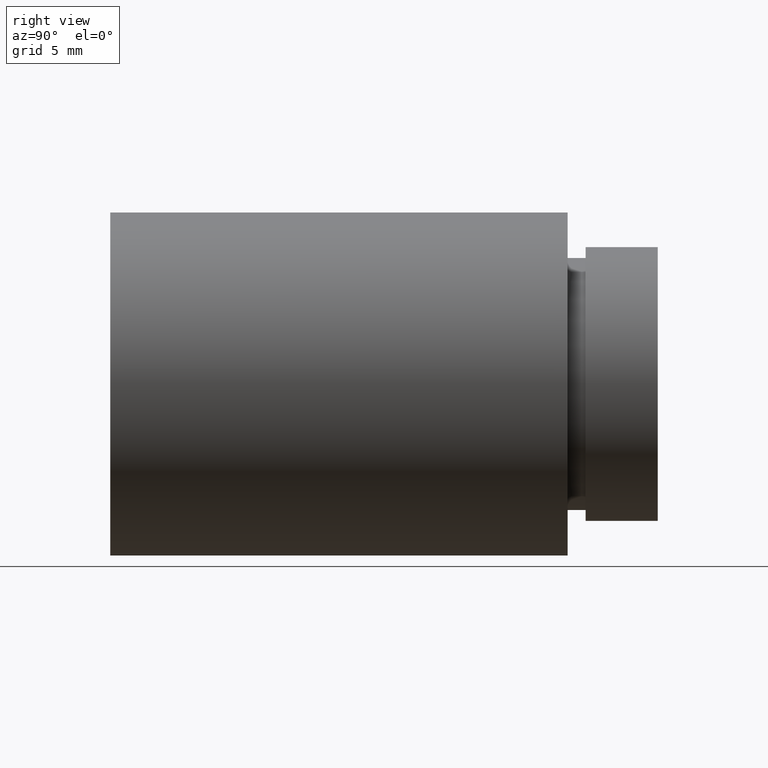
[diagram: clean part render]
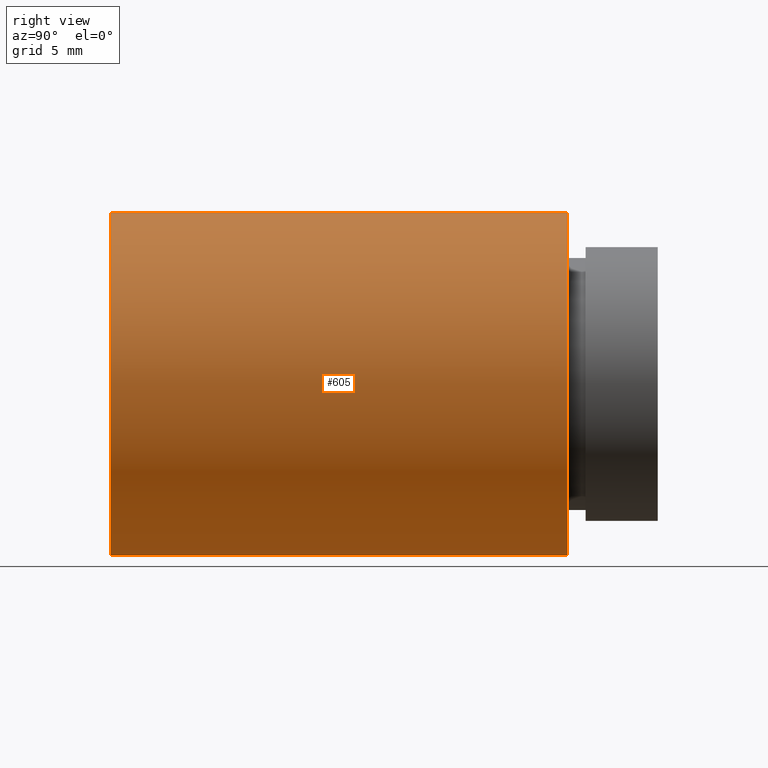
[diagram: same view with one face highlighted and labeled with its STEP entity id]
A machine part, right view. The second image highlights one B-rep face of the part: STEP entity #605.
In plain terms, the highlighted cylindrical surface (partial cylindrical patch) has radius 9.525 mm, axis along (-0, 1, -0).
Its self-contained STEP definition (entity closure, byte-faithful):
#26 = CARTESIAN_POINT ( 'NONE',  ( 1.166476076187856400E-015, 25.39999999999997700, -9.525000000000019900 ) ) ;
#38 = DIRECTION ( 'NONE',  ( 0.0000000000000000000, 0.0000000000000000000, 1.000000000000000000 ) ) ;
#48 = DIRECTION ( 'NONE',  ( 0.0000000000000000000, 0.0000000000000000000, 1.000000000000000000 ) ) ;
#77 = CARTESIAN_POINT ( 'NONE',  ( 1.166476076187856400E-015, 161.3761669434274500, -9.525000000000019900 ) ) ;
#89 = DIRECTION ( 'NONE',  ( -0.0000000000000000000, 1.000000000000000000, -0.0000000000000000000 ) ) ;
#96 = ORIENTED_EDGE ( 'NONE', *, *, #301, .F. ) ;
#112 = LINE ( 'NONE', #77, #191 ) ;
#122 = VERTEX_POINT ( 'NONE', #26 ) ;
#124 = CIRCLE ( 'NONE', #217, 9.525000000000019900 ) ;
#134 = FACE_OUTER_BOUND ( 'NONE', #152, .T. ) ;
#140 = DIRECTION ( 'NONE',  ( 0.0000000000000000000, 0.0000000000000000000, 1.000000000000000000 ) ) ;
#152 = EDGE_LOOP ( 'NONE', ( #262, #527, #96, #340 ) ) ;
#187 = CARTESIAN_POINT ( 'NONE',  ( 0.0000000000000000000, 161.3761669434274500, 9.525000000000019900 ) ) ;
#191 = VECTOR ( 'NONE', #223, 1000.000000000000000 ) ;
#195 = EDGE_CURVE ( 'NONE', #525, #122, #112, .T. ) ;
#199 = DIRECTION ( 'NONE',  ( -0.0000000000000000000, 1.000000000000000000, -0.0000000000000000000 ) ) ;
#217 = AXIS2_PLACEMENT_3D ( 'NONE', #469, #89, #38 ) ;
#223 = DIRECTION ( 'NONE',  ( -0.0000000000000000000, 1.000000000000000000, -0.0000000000000000000 ) ) ;
#239 = CARTESIAN_POINT ( 'NONE',  ( 0.0000000000000000000, -2.775557561562891400E-014, 0.0000000000000000000 ) ) ;
#249 = AXIS2_PLACEMENT_3D ( 'NONE', #239, #199, #140 ) ;
#257 = VERTEX_POINT ( 'NONE', #472 ) ;
#262 = ORIENTED_EDGE ( 'NONE', *, *, #618, .T. ) ;
#275 = AXIS2_PLACEMENT_3D ( 'NONE', #570, #377, #48 ) ;
#285 = VERTEX_POINT ( 'NONE', #566 ) ;
#301 = EDGE_CURVE ( 'NONE', #257, #122, #124, .T. ) ;
#314 = LINE ( 'NONE', #187, #439 ) ;
#340 = ORIENTED_EDGE ( 'NONE', *, *, #361, .F. ) ;
#361 = EDGE_CURVE ( 'NONE', #285, #257, #314, .T. ) ;
#377 = DIRECTION ( 'NONE',  ( -0.0000000000000000000, 1.000000000000000000, -0.0000000000000000000 ) ) ;
#390 = CARTESIAN_POINT ( 'NONE',  ( 1.166476076187856400E-015, -2.775557561562891400E-014, -9.525000000000019900 ) ) ;
#421 = CIRCLE ( 'NONE', #249, 9.525000000000019900 ) ;
#439 = VECTOR ( 'NONE', #511, 1000.000000000000000 ) ;
#469 = CARTESIAN_POINT ( 'NONE',  ( 0.0000000000000000000, 25.39999999999997700, 0.0000000000000000000 ) ) ;
#472 = CARTESIAN_POINT ( 'NONE',  ( 0.0000000000000000000, 25.39999999999997700, 9.525000000000019900 ) ) ;
#511 = DIRECTION ( 'NONE',  ( -0.0000000000000000000, 1.000000000000000000, -0.0000000000000000000 ) ) ;
#525 = VERTEX_POINT ( 'NONE', #390 ) ;
#527 = ORIENTED_EDGE ( 'NONE', *, *, #195, .T. ) ;
#566 = CARTESIAN_POINT ( 'NONE',  ( 0.0000000000000000000, -2.775557561562891400E-014, 9.525000000000019900 ) ) ;
#570 = CARTESIAN_POINT ( 'NONE',  ( 0.0000000000000000000, 161.3761669434274500, 0.0000000000000000000 ) ) ;
#605 = ADVANCED_FACE ( 'NONE', ( #134 ), #609, .T. ) ;
#609 = CYLINDRICAL_SURFACE ( 'NONE', #275, 9.525000000000019900 ) ;
#618 = EDGE_CURVE ( 'NONE', #285, #525, #421, .T. ) ;